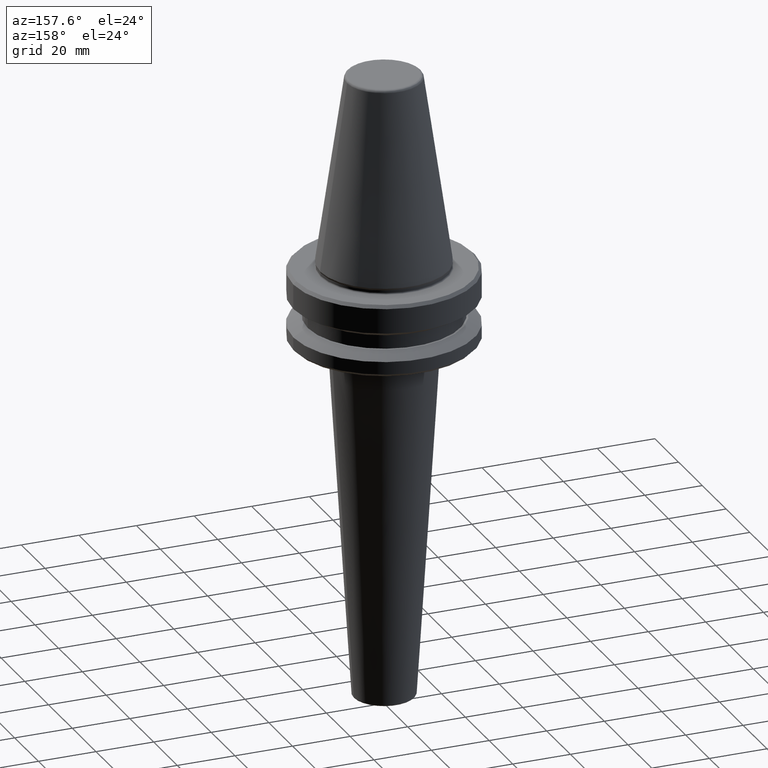
[diagram: clean part render]
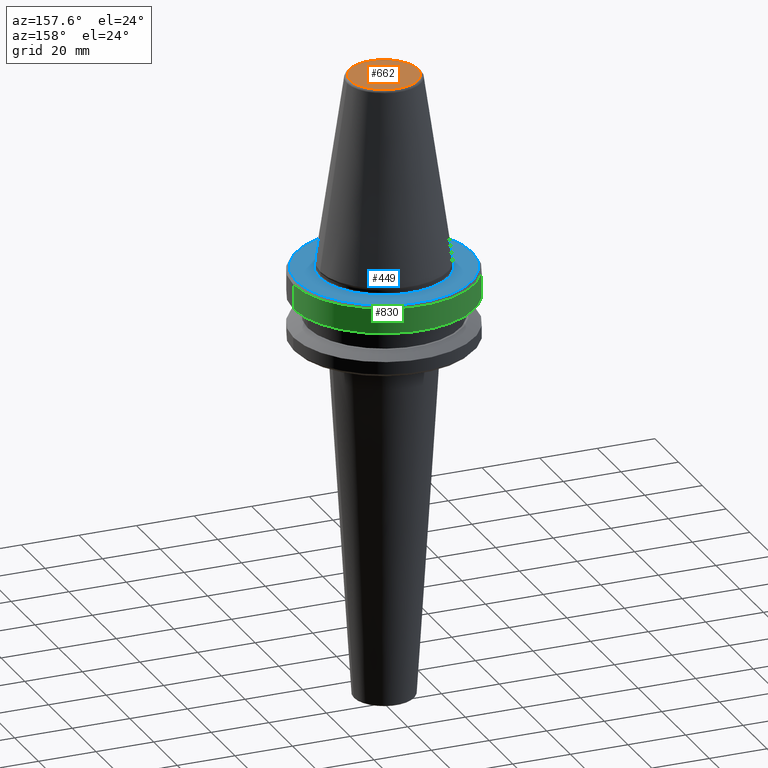
[diagram: same view with three faces highlighted in distinct colors, each labeled with its STEP entity id]
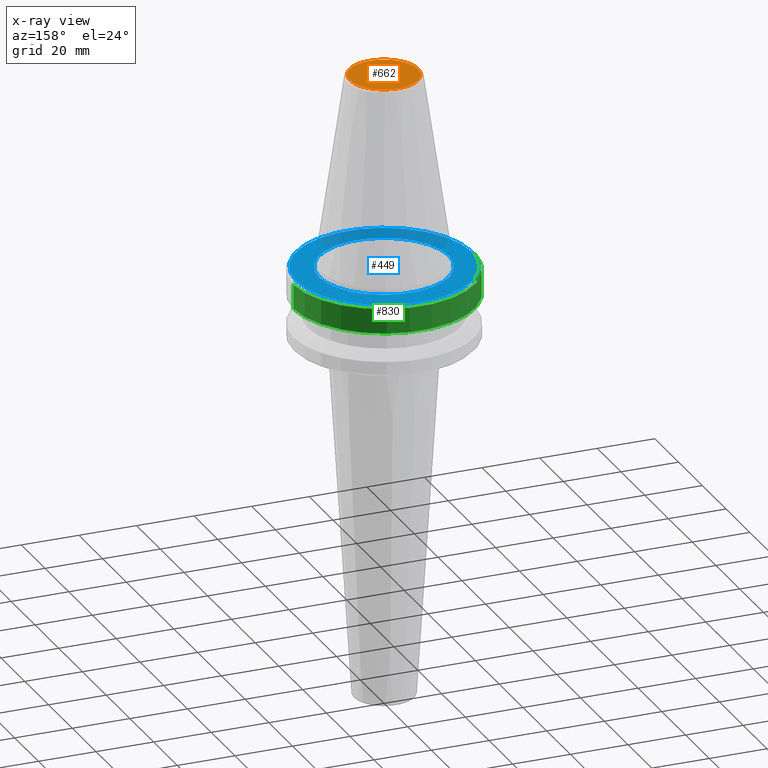
[diagram: x-ray of the same camera — body ghosted, the three highlighted faces saturated]
A machine part, auxiliary view with three faces highlighted in distinct colors.
The next image is the same camera in x-ray (body ghosted, the three faces saturated) — at least one of them is partly hidden behind the body in this view.
Their STEP definitions:

[orange] entity #662 — the highlighted planar face has unit normal (0, 0, -1).
#18 = EDGE_CURVE ( 'NONE', #167, #612, #36, .T. ) ;
#36 = CIRCLE ( 'NONE', #1040, 11.82266927716813000 ) ;
#87 = CIRCLE ( 'NONE', #442, 11.82266927716813000 ) ;
#91 = CARTESIAN_POINT ( 'NONE',  ( -11.82266927716813000, 1.508450817090336800E-015, -4.440892098500626200E-013 ) ) ;
#167 = VERTEX_POINT ( 'NONE', #703 ) ;
#246 = PLANE ( 'NONE',  #281 ) ;
#251 = DIRECTION ( 'NONE',  ( -1.000000000000000000, 0.0000000000000000000, -0.0000000000000000000 ) ) ;
#281 = AXIS2_PLACEMENT_3D ( 'NONE', #794, #715, #251 ) ;
#295 = DIRECTION ( 'NONE',  ( -0.0000000000000000000, -0.0000000000000000000, 1.000000000000000000 ) ) ;
#299 = FACE_OUTER_BOUND ( 'NONE', #898, .T. ) ;
#442 = AXIS2_PLACEMENT_3D ( 'NONE', #882, #811, #965 ) ;
#593 = ORIENTED_EDGE ( 'NONE', *, *, #610, .T. ) ;
#610 = EDGE_CURVE ( 'NONE', #612, #167, #87, .T. ) ;
#612 = VERTEX_POINT ( 'NONE', #91 ) ;
#662 = ADVANCED_FACE ( 'NONE', ( #299 ), #246, .F. ) ;
#703 = CARTESIAN_POINT ( 'NONE',  ( 11.82266927716813000, 0.0000000000000000000, -4.440892098500626200E-013 ) ) ;
#715 = DIRECTION ( 'NONE',  ( 0.0000000000000000000, 0.0000000000000000000, -1.000000000000000000 ) ) ;
#753 = DIRECTION ( 'NONE',  ( 1.000000000000000000, 0.0000000000000000000, 0.0000000000000000000 ) ) ;
#794 = CARTESIAN_POINT ( 'NONE',  ( 0.0000000000000000000, 0.0000000000000000000, -4.440892098500626200E-013 ) ) ;
#811 = DIRECTION ( 'NONE',  ( -0.0000000000000000000, -0.0000000000000000000, 1.000000000000000000 ) ) ;
#846 = ORIENTED_EDGE ( 'NONE', *, *, #18, .T. ) ;
#882 = CARTESIAN_POINT ( 'NONE',  ( 0.0000000000000000000, 0.0000000000000000000, -4.440892098500626200E-013 ) ) ;
#898 = EDGE_LOOP ( 'NONE', ( #846, #593 ) ) ;
#965 = DIRECTION ( 'NONE',  ( 1.000000000000000000, 0.0000000000000000000, 0.0000000000000000000 ) ) ;
#998 = CARTESIAN_POINT ( 'NONE',  ( 0.0000000000000000000, 0.0000000000000000000, -4.440892098500626200E-013 ) ) ;
#1040 = AXIS2_PLACEMENT_3D ( 'NONE', #998, #295, #753 ) ;

[blue] entity #449 — the highlighted planar face has unit normal (0, 0, -1).
#47 = AXIS2_PLACEMENT_3D ( 'NONE', #1018, #413, #573 ) ;
#52 = DIRECTION ( 'NONE',  ( -0.0000000000000000000, -0.0000000000000000000, 1.000000000000000000 ) ) ;
#65 = ORIENTED_EDGE ( 'NONE', *, *, #186, .F. ) ;
#82 = EDGE_CURVE ( 'NONE', #771, #252, #856, .T. ) ;
#146 = PLANE ( 'NONE',  #561 ) ;
#151 = CIRCLE ( 'NONE', #1006, 30.49999999999997200 ) ;
#155 = ORIENTED_EDGE ( 'NONE', *, *, #82, .T. ) ;
#166 = DIRECTION ( 'NONE',  ( -1.000000000000000000, 0.0000000000000000000, -0.0000000000000000000 ) ) ;
#177 = ORIENTED_EDGE ( 'NONE', *, *, #767, .T. ) ;
#186 = EDGE_CURVE ( 'NONE', #433, #799, #946, .T. ) ;
#210 = CARTESIAN_POINT ( 'NONE',  ( 22.49999999999996400, 0.0000000000000000000, -67.40000000000034700 ) ) ;
#226 = CARTESIAN_POINT ( 'NONE',  ( 0.0000000000000000000, 0.0000000000000000000, -67.40000000000034700 ) ) ;
#229 = FACE_BOUND ( 'NONE', #921, .T. ) ;
#252 = VERTEX_POINT ( 'NONE', #503 ) ;
#272 = DIRECTION ( 'NONE',  ( 1.000000000000000000, 0.0000000000000000000, 0.0000000000000000000 ) ) ;
#413 = DIRECTION ( 'NONE',  ( -0.0000000000000000000, -0.0000000000000000000, 1.000000000000000000 ) ) ;
#417 = EDGE_CURVE ( 'NONE', #799, #433, #888, .T. ) ;
#433 = VERTEX_POINT ( 'NONE', #210 ) ;
#449 = ADVANCED_FACE ( 'NONE', ( #229, #810 ), #146, .F. ) ;
#463 = CARTESIAN_POINT ( 'NONE',  ( -22.49999999999996400, 2.755455298081540400E-015, -67.40000000000034700 ) ) ;
#469 = DIRECTION ( 'NONE',  ( -0.0000000000000000000, -0.0000000000000000000, 1.000000000000000000 ) ) ;
#472 = CARTESIAN_POINT ( 'NONE',  ( 0.0000000000000000000, 0.0000000000000000000, -67.40000000000034700 ) ) ;
#492 = DIRECTION ( 'NONE',  ( -0.0000000000000000000, -0.0000000000000000000, 1.000000000000000000 ) ) ;
#503 = CARTESIAN_POINT ( 'NONE',  ( -30.49999999999997200, 0.0000000000000000000, -67.40000000000034700 ) ) ;
#535 = DIRECTION ( 'NONE',  ( 1.000000000000000000, 0.0000000000000000000, 0.0000000000000000000 ) ) ;
#561 = AXIS2_PLACEMENT_3D ( 'NONE', #472, #801, #166 ) ;
#573 = DIRECTION ( 'NONE',  ( 1.000000000000000000, 0.0000000000000000000, 0.0000000000000000000 ) ) ;
#649 = CARTESIAN_POINT ( 'NONE',  ( 0.0000000000000000000, 0.0000000000000000000, -67.40000000000034700 ) ) ;
#717 = ORIENTED_EDGE ( 'NONE', *, *, #417, .F. ) ;
#767 = EDGE_CURVE ( 'NONE', #252, #771, #151, .T. ) ;
#771 = VERTEX_POINT ( 'NONE', #956 ) ;
#799 = VERTEX_POINT ( 'NONE', #463 ) ;
#801 = DIRECTION ( 'NONE',  ( 0.0000000000000000000, 0.0000000000000000000, -1.000000000000000000 ) ) ;
#808 = AXIS2_PLACEMENT_3D ( 'NONE', #226, #469, #934 ) ;
#810 = FACE_OUTER_BOUND ( 'NONE', #872, .T. ) ;
#856 = CIRCLE ( 'NONE', #808, 30.49999999999997200 ) ;
#872 = EDGE_LOOP ( 'NONE', ( #177, #155 ) ) ;
#878 = AXIS2_PLACEMENT_3D ( 'NONE', #649, #52, #272 ) ;
#888 = CIRCLE ( 'NONE', #47, 22.49999999999996400 ) ;
#921 = EDGE_LOOP ( 'NONE', ( #65, #717 ) ) ;
#934 = DIRECTION ( 'NONE',  ( 1.000000000000000000, 0.0000000000000000000, 0.0000000000000000000 ) ) ;
#946 = CIRCLE ( 'NONE', #878, 22.49999999999996400 ) ;
#956 = CARTESIAN_POINT ( 'NONE',  ( 30.49999999999997200, 3.796405077356798300E-015, -67.40000000000034700 ) ) ;
#958 = CARTESIAN_POINT ( 'NONE',  ( 0.0000000000000000000, 0.0000000000000000000, -67.40000000000034700 ) ) ;
#1006 = AXIS2_PLACEMENT_3D ( 'NONE', #958, #492, #535 ) ;
#1018 = CARTESIAN_POINT ( 'NONE',  ( 0.0000000000000000000, 0.0000000000000000000, -67.40000000000034700 ) ) ;

[green] entity #830 — the highlighted cylindrical surface (partial cylindrical patch) has radius 31.5 mm, axis along (-0, -0, 1).
#30 = CARTESIAN_POINT ( 'NONE',  ( 31.50000000000008500, 0.0000000000000000000, -68.40000000000046000 ) ) ;
#74 = CARTESIAN_POINT ( 'NONE',  ( -31.50000000000008500, 3.857637417314172900E-015, -76.99985799368391800 ) ) ;
#75 = DIRECTION ( 'NONE',  ( -0.0000000000000000000, -0.0000000000000000000, 1.000000000000000000 ) ) ;
#81 = VERTEX_POINT ( 'NONE', #30 ) ;
#98 = CIRCLE ( 'NONE', #334, 31.50000000000008500 ) ;
#103 = EDGE_CURVE ( 'NONE', #971, #378, #637, .T. ) ;
#124 = AXIS2_PLACEMENT_3D ( 'NONE', #153, #1038, #215 ) ;
#129 = EDGE_LOOP ( 'NONE', ( #618, #452, #728, #691 ) ) ;
#153 = CARTESIAN_POINT ( 'NONE',  ( 0.0000000000000000000, 0.0000000000000000000, -76.99985799368391800 ) ) ;
#183 = CARTESIAN_POINT ( 'NONE',  ( -31.50000000000008500, 3.857637417314172900E-015, 6.357346922996331500 ) ) ;
#192 = LINE ( 'NONE', #1008, #1009 ) ;
#194 = VECTOR ( 'NONE', #75, 1000.000000000000000 ) ;
#215 = DIRECTION ( 'NONE',  ( 1.000000000000000000, 0.0000000000000000000, 0.0000000000000000000 ) ) ;
#290 = CYLINDRICAL_SURFACE ( 'NONE', #665, 31.50000000000008500 ) ;
#306 = CIRCLE ( 'NONE', #124, 31.50000000000008500 ) ;
#313 = EDGE_CURVE ( 'NONE', #81, #378, #98, .T. ) ;
#334 = AXIS2_PLACEMENT_3D ( 'NONE', #344, #939, #1022 ) ;
#344 = CARTESIAN_POINT ( 'NONE',  ( 0.0000000000000000000, 0.0000000000000000000, -68.40000000000046000 ) ) ;
#378 = VERTEX_POINT ( 'NONE', #797 ) ;
#379 = EDGE_CURVE ( 'NONE', #687, #971, #306, .T. ) ;
#452 = ORIENTED_EDGE ( 'NONE', *, *, #103, .T. ) ;
#530 = CARTESIAN_POINT ( 'NONE',  ( 0.0000000000000000000, 0.0000000000000000000, 6.357346922996331500 ) ) ;
#618 = ORIENTED_EDGE ( 'NONE', *, *, #379, .T. ) ;
#637 = LINE ( 'NONE', #183, #194 ) ;
#665 = AXIS2_PLACEMENT_3D ( 'NONE', #530, #737, #844 ) ;
#686 = CARTESIAN_POINT ( 'NONE',  ( 31.50000000000008500, 0.0000000000000000000, -76.99985799368391800 ) ) ;
#687 = VERTEX_POINT ( 'NONE', #686 ) ;
#691 = ORIENTED_EDGE ( 'NONE', *, *, #720, .F. ) ;
#720 = EDGE_CURVE ( 'NONE', #687, #81, #192, .T. ) ;
#728 = ORIENTED_EDGE ( 'NONE', *, *, #313, .F. ) ;
#737 = DIRECTION ( 'NONE',  ( -0.0000000000000000000, -0.0000000000000000000, 1.000000000000000000 ) ) ;
#797 = CARTESIAN_POINT ( 'NONE',  ( -31.50000000000008500, 3.857637417314172900E-015, -68.40000000000046000 ) ) ;
#830 = ADVANCED_FACE ( 'NONE', ( #913 ), #290, .T. ) ;
#844 = DIRECTION ( 'NONE',  ( 1.000000000000000000, 0.0000000000000000000, 0.0000000000000000000 ) ) ;
#849 = DIRECTION ( 'NONE',  ( -0.0000000000000000000, -0.0000000000000000000, 1.000000000000000000 ) ) ;
#913 = FACE_OUTER_BOUND ( 'NONE', #129, .T. ) ;
#939 = DIRECTION ( 'NONE',  ( -0.0000000000000000000, -0.0000000000000000000, 1.000000000000000000 ) ) ;
#971 = VERTEX_POINT ( 'NONE', #74 ) ;
#1008 = CARTESIAN_POINT ( 'NONE',  ( 31.50000000000008500, 0.0000000000000000000, 6.357346922996331500 ) ) ;
#1009 = VECTOR ( 'NONE', #849, 1000.000000000000000 ) ;
#1022 = DIRECTION ( 'NONE',  ( 1.000000000000000000, 0.0000000000000000000, 0.0000000000000000000 ) ) ;
#1038 = DIRECTION ( 'NONE',  ( -0.0000000000000000000, -0.0000000000000000000, 1.000000000000000000 ) ) ;